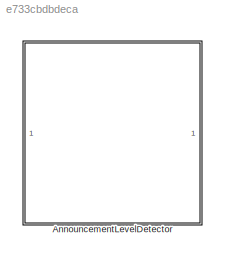
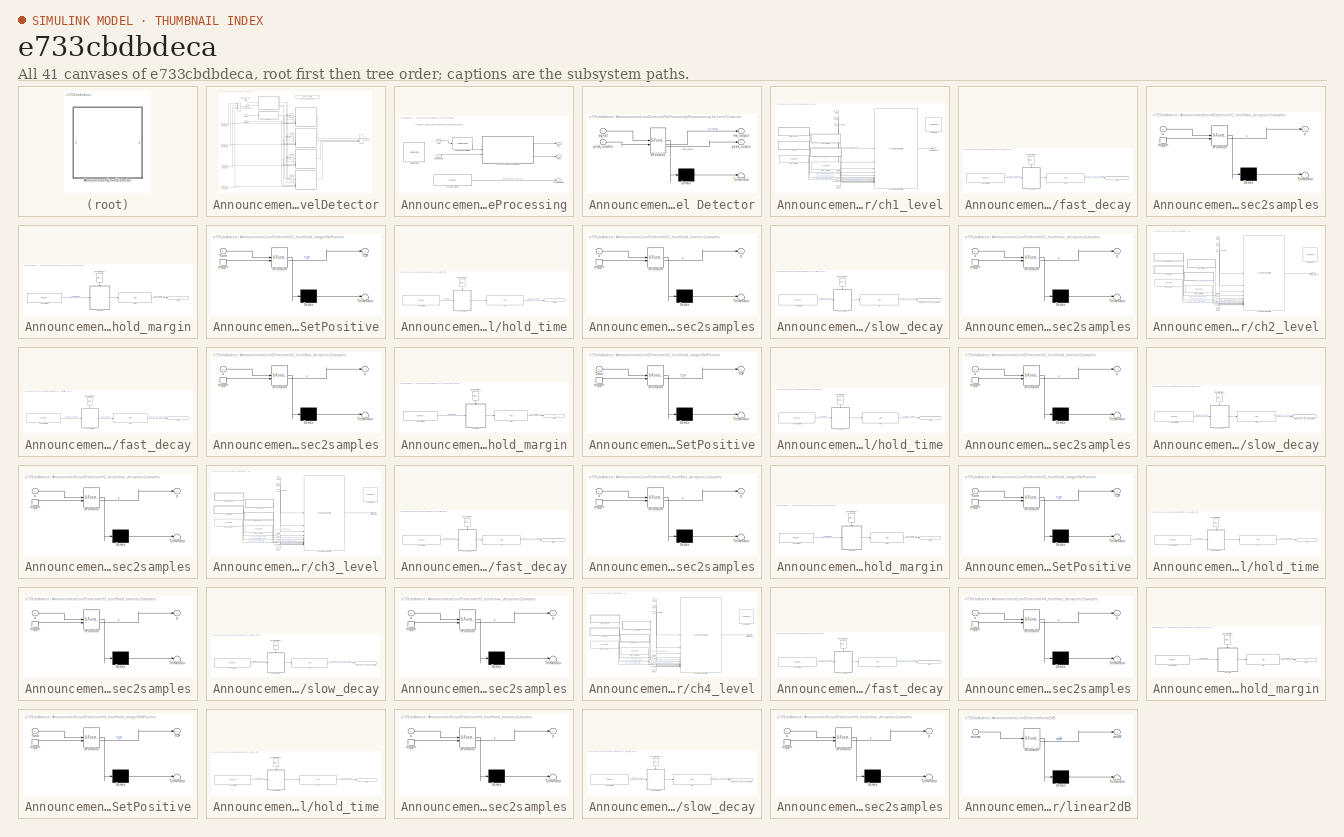
[diagram: thumbnail index - all 41 canvases of the model, root first then tree order]
MODEL slx_e733cbdbdeca
KIND library
CONFIG AbsTol = auto
CONFIG EnableMultiTasking = off
CONFIG FixedStep = auto
CONFIG InitFcn = AnnouncementLevelDetector_init;
CONFIG MaxStep = auto
CONFIG MinStep = auto
CONFIG PreLoadFcn = if (~exist('sys_defs','var'))\n sys_defs = default_sys_defs();\nend\nNUM_MUSIC_IN=6;\n%EntertainmentLevelDetection_init(sys_defs); 
CONFIG RelTol = 1e-3
CONFIG SampleTimeConstraint = Unconstrained
CONFIG SolverName = VariableStepAuto
CONFIG StartTime = 0.0
CONFIG StopTime = 10.0
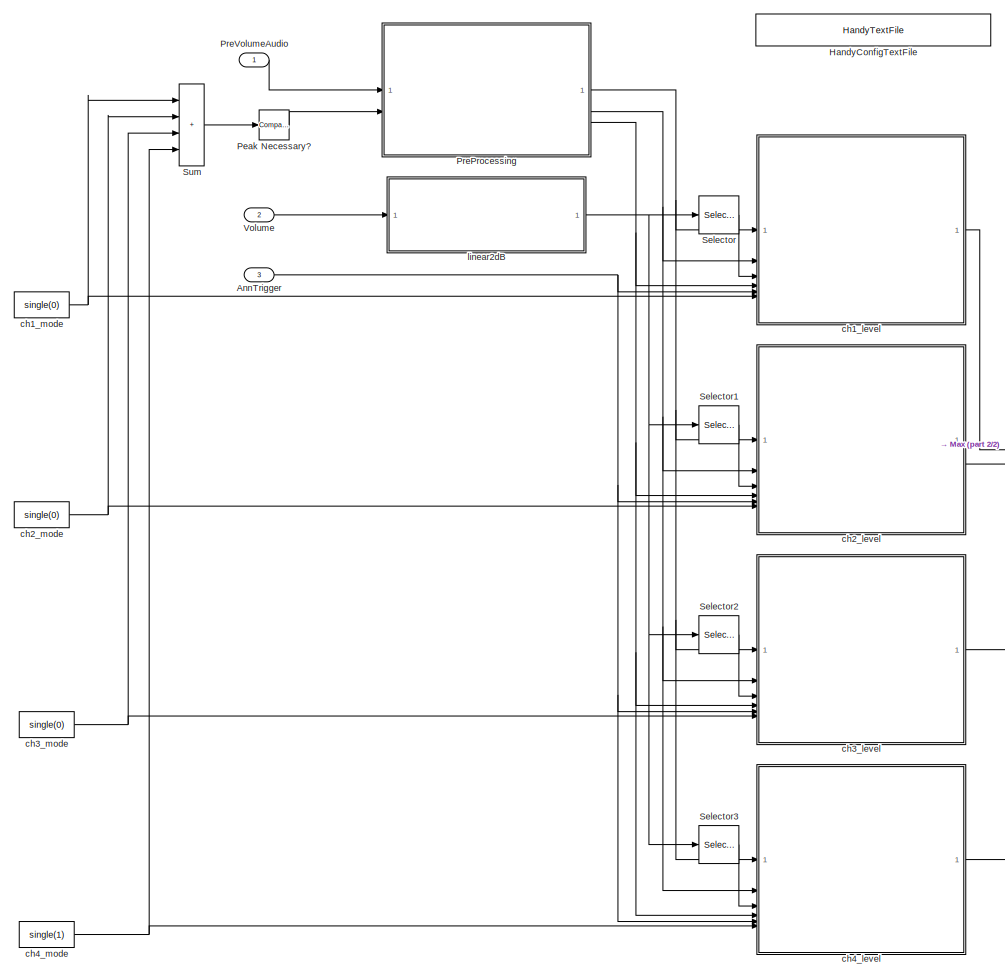
[diagram: AnnouncementLevelDetector - part 1/2, center side, full height]
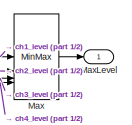
[diagram: AnnouncementLevelDetector - part 2/2, middle right region]
BLOCK [SubSystem] AnnouncementLevelDetector
BLOCK [Inport] AnnouncementLevelDetector/AnnTrigger
  Port = 3
BLOCK [Reference] AnnouncementLevelDetector/HandyConfigTextFile  REF=HandyTextFile/HandyTextFile
  SourceBlock = HandyTextFile/HandyTextFile
  SourceProductName = Bose Talaria
  SourceType = Talaria Handy Text File
BLOCK [MinMax] AnnouncementLevelDetector/Max
  Function = max
  Inputs = 4
BLOCK [Outport] AnnouncementLevelDetector/MaxLevel
BLOCK [Reference] AnnouncementLevelDetector/Peak Necessary?  REF=simulink/Logic and Bit
Operations/Compare
To Zero
  SourceBlock = simulink/Logic and Bit\nOperations/Compare\nTo Zero
  SourceType = Compare To Zero
BLOCK [SubSystem] AnnouncementLevelDetector/PreProcessing
BLOCK [Inport] AnnouncementLevelDetector/PreProcessing/Audio
BLOCK [Reference] AnnouncementLevelDetector/PreProcessing/FeaturePath  REF=FeaturePath/FeaturePath
  SourceBlock = FeaturePath/FeaturePath
  SourceProductName = Bose Talaria
  SourceType = Talaria Feature Path
BLOCK [Outport] AnnouncementLevelDetector/PreProcessing/Peak
  Port = 2
  VectorParamsAs1DForOutWhenUnconnected = off
BLOCK [Inport] AnnouncementLevelDetector/PreProcessing/PeakEnable
  Port = 2
BLOCK [Reference] AnnouncementLevelDetector/PreProcessing/PreEmphasisShelfFilter  REF=PoolIir/PoolIirTunable
  SourceBlock = PoolIir/PoolIirTunable
  SourceType = Bose Pool IIR Tunable
BLOCK [SubSystem] AnnouncementLevelDetector/PreProcessing/Preprocessing for Level Detector
  ErrorFcn = Stateflow.Translate.translate
  PermitHierarchicalResolution = ExplicitOnly
  SFBlockType = MATLAB Function
  TreatAsAtomicUnit = on
BLOCK [Demux] AnnouncementLevelDetector/PreProcessing/Preprocessing for Level Detector/ Demux 
  Outputs = 1
BLOCK [S-Function] AnnouncementLevelDetector/PreProcessing/Preprocessing for Level Detector/ SFunction 
  EnableBusSupport = off
  FunctionName = sf_sfun
  PortCounts = [2 3]
  SFcnIsStateOwnerBlock = off
  SFunctionDeploymentMode = off
  Tag = Stateflow S-Function 15
BLOCK [Terminator] AnnouncementLevelDetector/PreProcessing/Preprocessing for Level Detector/ Terminator 
BLOCK [Inport] AnnouncementLevelDetector/PreProcessing/Preprocessing for Level Detector/peak_enable
  Port = 2
BLOCK [Outport] AnnouncementLevelDetector/PreProcessing/Preprocessing for Level Detector/peak_output
  Port = 2
  VectorParamsAs1DForOutWhenUnconnected = off
BLOCK [Outport] AnnouncementLevelDetector/PreProcessing/Preprocessing for Level Detector/rms_output
  VectorParamsAs1DForOutWhenUnconnected = off
BLOCK [Inport] AnnouncementLevelDetector/PreProcessing/Preprocessing for Level Detector/signal
BLOCK [Outport] AnnouncementLevelDetector/PreProcessing/RMS
  VectorParamsAs1DForOutWhenUnconnected = off
BLOCK [Outport] AnnouncementLevelDetector/PreProcessing/SysMaxdBSPL
  Port = 3
  VectorParamsAs1DForOutWhenUnconnected = off
BLOCK [Reference] AnnouncementLevelDetector/PreProcessing/sys_max_dbspl  REF=TuneVar/TuneTOP
  SourceBlock = TuneVar/TuneTOP
  SourceProductName = Bose Talaria
  SourceType = Talaria Trivial Tune TOP
BLOCK [Inport] AnnouncementLevelDetector/PreVolumeAudio
  PortDimensions = [Config.FrameSize Config.AnnChannelCount]
BLOCK [Selector] AnnouncementLevelDetector/Selector
  IndexOptions = Select all,Index vector (dialog)
  Indices = [1 3],1
  InputPortWidth = 3
  NumberOfDimensions = 2
  OutputSizes = 1,1
BLOCK [Selector] AnnouncementLevelDetector/Selector1
  IndexOptions = Select all,Index vector (dialog)
  Indices = [1 3],min(2, Config.AnnChannelCount)
  InputPortWidth = 3
  NumberOfDimensions = 2
  OutputSizes = 1,1
BLOCK [Selector] AnnouncementLevelDetector/Selector2
  IndexOptions = Select all,Index vector (dialog)
  Indices = [1 3],min(3, Config.AnnChannelCount)
  InputPortWidth = 3
  NumberOfDimensions = 2
  OutputSizes = 1,1
BLOCK [Selector] AnnouncementLevelDetector/Selector3
  IndexOptions = Select all,Index vector (dialog)
  Indices = [1 3],min(4, Config.AnnChannelCount)
  InputPortWidth = 3
  NumberOfDimensions = 2
  OutputSizes = 1,1
BLOCK [Sum] AnnouncementLevelDetector/Sum
  IconShape = rectangular
  Inputs = ++++
BLOCK [Inport] AnnouncementLevelDetector/Volume
  Port = 2
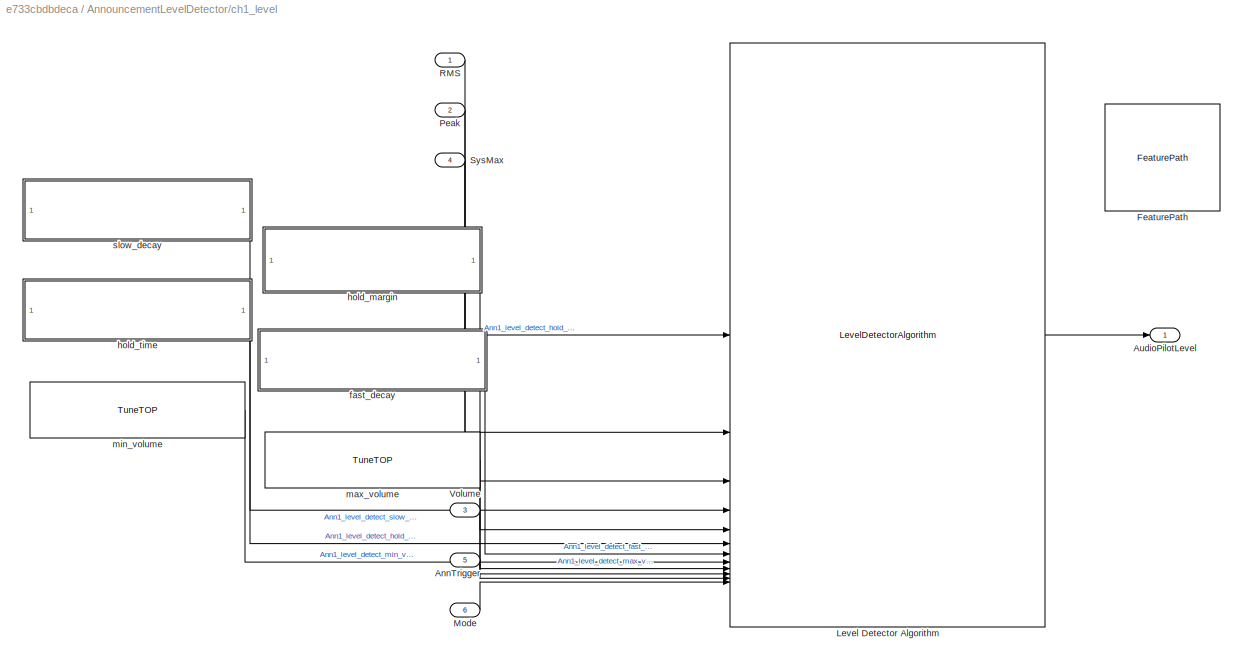
BLOCK [SubSystem] AnnouncementLevelDetector/ch1_level
BLOCK [Inport] AnnouncementLevelDetector/ch1_level/AnnTrigger
  Port = 5
BLOCK [Outport] AnnouncementLevelDetector/ch1_level/AudioPilotLevel
  VectorParamsAs1DForOutWhenUnconnected = off
BLOCK [Reference] AnnouncementLevelDetector/ch1_level/FeaturePath  REF=FeaturePath/FeaturePath
  SourceBlock = FeaturePath/FeaturePath
  SourceProductName = Bose Talaria
  SourceType = Talaria Feature Path
BLOCK [Reference] AnnouncementLevelDetector/ch1_level/Level Detector Algorithm  REF=LevelDetectorLib/LevelDetectorAlgorithm
  SourceBlock = LevelDetectorLib/LevelDetectorAlgorithm
  SourceType = Bose Level Detector Algorithm
BLOCK [Inport] AnnouncementLevelDetector/ch1_level/Mode
  Port = 6
BLOCK [Inport] AnnouncementLevelDetector/ch1_level/Peak
  Port = 2
BLOCK [Inport] AnnouncementLevelDetector/ch1_level/RMS
BLOCK [Inport] AnnouncementLevelDetector/ch1_level/SysMax
  Port = 4
BLOCK [Inport] AnnouncementLevelDetector/ch1_level/Volume
  Port = 3
BLOCK [SubSystem] AnnouncementLevelDetector/ch1_level/fast_decay
BLOCK [Outport] AnnouncementLevelDetector/ch1_level/fast_decay/Out1
  IconDisplay = Signal name
  VectorParamsAs1DForOutWhenUnconnected = off
BLOCK [Reference] AnnouncementLevelDetector/ch1_level/fast_decay/TOP  REF=TOP/TOP
  SourceBlock = TOP/TOP
  SourceProductName = Bose Talaria
  SourceType = Talaria Target Overlay Parameter
BLOCK [Reference] AnnouncementLevelDetector/ch1_level/fast_decay/TranslateTrigger  REF=TuneVar/TranslateTrigger
  NameLocation = left
  SourceBlock = TuneVar/TranslateTrigger
  SourceProductName = Bose Talaria
  SourceType = Talaria Translate Trigger
BLOCK [Reference] AnnouncementLevelDetector/ch1_level/fast_decay/Tune Variable  REF=TuneVar/TuneVar
  SourceBlock = TuneVar/TuneVar
  SourceProductName = Bose Talaria
  SourceType = Talaria Tune Variable
BLOCK [SubSystem] AnnouncementLevelDetector/ch1_level/fast_decay/sec2samples
  ErrorFcn = Stateflow.Translate.translate
  PermitHierarchicalResolution = ExplicitOnly
  SFBlockType = MATLAB Function
  TreatAsAtomicUnit = on
BLOCK [Demux] AnnouncementLevelDetector/ch1_level/fast_decay/sec2samples/ Demux 
  Outputs = 1
BLOCK [S-Function] AnnouncementLevelDetector/ch1_level/fast_decay/sec2samples/ SFunction 
  EnableBusSupport = off
  FunctionName = sf_sfun
  Parameters = FrameRate
  PortCounts = [2 2]
  SFcnIsStateOwnerBlock = off
  SFunctionDeploymentMode = off
  Tag = Stateflow S-Function 1
BLOCK [Terminator] AnnouncementLevelDetector/ch1_level/fast_decay/sec2samples/ Terminator 
BLOCK [TriggerPort] AnnouncementLevelDetector/ch1_level/fast_decay/sec2samples/trigger
  ShowOutputPort = on
  StatesWhenEnabling = held
  TriggerType = function-call
  VariantControl = Variant
BLOCK [Inport] AnnouncementLevelDetector/ch1_level/fast_decay/sec2samples/u
BLOCK [Outport] AnnouncementLevelDetector/ch1_level/fast_decay/sec2samples/y
  VectorParamsAs1DForOutWhenUnconnected = off
BLOCK [SubSystem] AnnouncementLevelDetector/ch1_level/hold_margin
BLOCK [Outport] AnnouncementLevelDetector/ch1_level/hold_margin/Out1
  IconDisplay = Signal name
  VectorParamsAs1DForOutWhenUnconnected = off
BLOCK [SubSystem] AnnouncementLevelDetector/ch1_level/hold_margin/SetPositive
  ErrorFcn = Stateflow.Translate.translate
  PermitHierarchicalResolution = ExplicitOnly
  SFBlockType = MATLAB Function
  TreatAsAtomicUnit = on
BLOCK [Demux] AnnouncementLevelDetector/ch1_level/hold_margin/SetPositive/ Demux 
  Outputs = 1
BLOCK [S-Function] AnnouncementLevelDetector/ch1_level/hold_margin/SetPositive/ SFunction 
  EnableBusSupport = off
  FunctionName = sf_sfun
  PortCounts = [2 2]
  SFcnIsStateOwnerBlock = off
  SFunctionDeploymentMode = off
  Tag = Stateflow S-Function 11
BLOCK [Terminator] AnnouncementLevelDetector/ch1_level/hold_margin/SetPositive/ Terminator 
BLOCK [Outport] AnnouncementLevelDetector/ch1_level/hold_margin/SetPositive/TOP
  VectorParamsAs1DForOutWhenUnconnected = off
BLOCK [Inport] AnnouncementLevelDetector/ch1_level/hold_margin/SetPositive/Tune
BLOCK [TriggerPort] AnnouncementLevelDetector/ch1_level/hold_margin/SetPositive/trigger
  ShowOutputPort = on
  StatesWhenEnabling = held
  TriggerType = function-call
  VariantControl = Variant
BLOCK [Reference] AnnouncementLevelDetector/ch1_level/hold_margin/TOP  REF=TOP/TOP
  SourceBlock = TOP/TOP
  SourceProductName = Bose Talaria
  SourceType = Talaria Target Overlay Parameter
BLOCK [Reference] AnnouncementLevelDetector/ch1_level/hold_margin/TranslateTrigger  REF=TuneVar/TranslateTrigger
  NameLocation = left
  SourceBlock = TuneVar/TranslateTrigger
  SourceProductName = Bose Talaria
  SourceType = Talaria Translate Trigger
BLOCK [Reference] AnnouncementLevelDetector/ch1_level/hold_margin/Tune Variable  REF=TuneVar/TuneVar
  SourceBlock = TuneVar/TuneVar
  SourceProductName = Bose Talaria
  SourceType = Talaria Tune Variable
BLOCK [SubSystem] AnnouncementLevelDetector/ch1_level/hold_time
BLOCK [Outport] AnnouncementLevelDetector/ch1_level/hold_time/Out1
  IconDisplay = Signal name
  VectorParamsAs1DForOutWhenUnconnected = off
BLOCK [Reference] AnnouncementLevelDetector/ch1_level/hold_time/TOP  REF=TOP/TOP
  SourceBlock = TOP/TOP
  SourceProductName = Bose Talaria
  SourceType = Talaria Target Overlay Parameter
BLOCK [Reference] AnnouncementLevelDetector/ch1_level/hold_time/TranslateTrigger  REF=TuneVar/TranslateTrigger
  NameLocation = left
  SourceBlock = TuneVar/TranslateTrigger
  SourceProductName = Bose Talaria
  SourceType = Talaria Translate Trigger
BLOCK [Reference] AnnouncementLevelDetector/ch1_level/hold_time/Tune Variable  REF=TuneVar/TuneVar
  SourceBlock = TuneVar/TuneVar
  SourceProductName = Bose Talaria
  SourceType = Talaria Tune Variable
BLOCK [SubSystem] AnnouncementLevelDetector/ch1_level/hold_time/sec2samples
  ErrorFcn = Stateflow.Translate.translate
  PermitHierarchicalResolution = ExplicitOnly
  SFBlockType = MATLAB Function
  TreatAsAtomicUnit = on
BLOCK [Demux] AnnouncementLevelDetector/ch1_level/hold_time/sec2samples/ Demux 
  Outputs = 1
BLOCK [S-Function] AnnouncementLevelDetector/ch1_level/hold_time/sec2samples/ SFunction 
  EnableBusSupport = off
  FunctionName = sf_sfun
  Parameters = FrameRate
  PortCounts = [2 2]
  SFcnIsStateOwnerBlock = off
  SFunctionDeploymentMode = off
  Tag = Stateflow S-Function 2
BLOCK [Terminator] AnnouncementLevelDetector/ch1_level/hold_time/sec2samples/ Terminator 
BLOCK [TriggerPort] AnnouncementLevelDetector/ch1_level/hold_time/sec2samples/trigger
  ShowOutputPort = on
  StatesWhenEnabling = held
  TriggerType = function-call
  VariantControl = Variant
BLOCK [Inport] AnnouncementLevelDetector/ch1_level/hold_time/sec2samples/u
BLOCK [Outport] AnnouncementLevelDetector/ch1_level/hold_time/sec2samples/y
  VectorParamsAs1DForOutWhenUnconnected = off
BLOCK [Reference] AnnouncementLevelDetector/ch1_level/max_volume  REF=TuneVar/TuneTOP
  SourceBlock = TuneVar/TuneTOP
  SourceProductName = Bose Talaria
  SourceType = Talaria Trivial Tune TOP
BLOCK [Reference] AnnouncementLevelDetector/ch1_level/min_volume  REF=TuneVar/TuneTOP
  SourceBlock = TuneVar/TuneTOP
  SourceProductName = Bose Talaria
  SourceType = Talaria Trivial Tune TOP
BLOCK [SubSystem] AnnouncementLevelDetector/ch1_level/slow_decay
BLOCK [Reference] AnnouncementLevelDetector/ch1_level/slow_decay/TOP  REF=TOP/TOP
  SourceBlock = TOP/TOP
  SourceProductName = Bose Talaria
  SourceType = Talaria Target Overlay Parameter
BLOCK [Reference] AnnouncementLevelDetector/ch1_level/slow_decay/TranslateTrigger  REF=TuneVar/TranslateTrigger
  NameLocation = left
  SourceBlock = TuneVar/TranslateTrigger
  SourceProductName = Bose Talaria
  SourceType = Talaria Translate Trigger
BLOCK [Reference] AnnouncementLevelDetector/ch1_level/slow_decay/Tune Variable  REF=TuneVar/TuneVar
  SourceBlock = TuneVar/TuneVar
  SourceProductName = Bose Talaria
  SourceType = Talaria Tune Variable
BLOCK [SubSystem] AnnouncementLevelDetector/ch1_level/slow_decay/sec2samples
  ErrorFcn = Stateflow.Translate.translate
  PermitHierarchicalResolution = ExplicitOnly
  SFBlockType = MATLAB Function
  TreatAsAtomicUnit = on
BLOCK [Demux] AnnouncementLevelDetector/ch1_level/slow_decay/sec2samples/ Demux 
  Outputs = 1
BLOCK [S-Function] AnnouncementLevelDetector/ch1_level/slow_decay/sec2samples/ SFunction 
  EnableBusSupport = off
  FunctionName = sf_sfun
  Parameters = FrameRate
  PortCounts = [2 2]
  SFcnIsStateOwnerBlock = off
  SFunctionDeploymentMode = off
  Tag = Stateflow S-Function 8
BLOCK [Terminator] AnnouncementLevelDetector/ch1_level/slow_decay/sec2samples/ Terminator 
BLOCK [TriggerPort] AnnouncementLevelDetector/ch1_level/slow_decay/sec2samples/trigger
  ShowOutputPort = on
  StatesWhenEnabling = held
  TriggerType = function-call
  VariantControl = Variant
BLOCK [Inport] AnnouncementLevelDetector/ch1_level/slow_decay/sec2samples/u
BLOCK [Outport] AnnouncementLevelDetector/ch1_level/slow_decay/sec2samples/y
  VectorParamsAs1DForOutWhenUnconnected = off
BLOCK [Outport] AnnouncementLevelDetector/ch1_level/slow_decay/slow_decay_db_per_sample
  IconDisplay = Signal name
  VectorParamsAs1DForOutWhenUnconnected = off
BLOCK [Constant] AnnouncementLevelDetector/ch1_mode
  Value = single(0)
BLOCK [SubSystem] AnnouncementLevelDetector/ch2_level
BLOCK [Inport] AnnouncementLevelDetector/ch2_level/AnnTrigger
  Port = 5
BLOCK [Outport] AnnouncementLevelDetector/ch2_level/DyneqLevel
  VectorParamsAs1DForOutWhenUnconnected = off
BLOCK [Reference] AnnouncementLevelDetector/ch2_level/FeaturePath  REF=FeaturePath/FeaturePath
  SourceBlock = FeaturePath/FeaturePath
  SourceProductName = Bose Talaria
  SourceType = Talaria Feature Path
BLOCK [Reference] AnnouncementLevelDetector/ch2_level/Level Detector Algorithm  REF=LevelDetectorLib/LevelDetectorAlgorithm
  SourceBlock = LevelDetectorLib/LevelDetectorAlgorithm
  SourceType = Bose Level Detector Algorithm
BLOCK [Inport] AnnouncementLevelDetector/ch2_level/Mode
  Port = 6
BLOCK [Inport] AnnouncementLevelDetector/ch2_level/Peak
  Port = 2
BLOCK [Inport] AnnouncementLevelDetector/ch2_level/RMS
BLOCK [Inport] AnnouncementLevelDetector/ch2_level/SysMax
  Port = 4
BLOCK [Inport] AnnouncementLevelDetector/ch2_level/Volume
  Port = 3
BLOCK [SubSystem] AnnouncementLevelDetector/ch2_level/fast_decay
BLOCK [Outport] AnnouncementLevelDetector/ch2_level/fast_decay/Out1
  IconDisplay = Signal name
  VectorParamsAs1DForOutWhenUnconnected = off
BLOCK [Reference] AnnouncementLevelDetector/ch2_level/fast_decay/TOP  REF=TOP/TOP
  SourceBlock = TOP/TOP
  SourceProductName = Bose Talaria
  SourceType = Talaria Target Overlay Parameter
BLOCK [Reference] AnnouncementLevelDetector/ch2_level/fast_decay/TranslateTrigger  REF=TuneVar/TranslateTrigger
  NameLocation = left
  SourceBlock = TuneVar/TranslateTrigger
  SourceProductName = Bose Talaria
  SourceType = Talaria Translate Trigger
BLOCK [Reference] AnnouncementLevelDetector/ch2_level/fast_decay/Tune Variable  REF=TuneVar/TuneVar
  SourceBlock = TuneVar/TuneVar
  SourceProductName = Bose Talaria
  SourceType = Talaria Tune Variable
BLOCK [SubSystem] AnnouncementLevelDetector/ch2_level/fast_decay/sec2samples
  ErrorFcn = Stateflow.Translate.translate
  PermitHierarchicalResolution = ExplicitOnly
  SFBlockType = MATLAB Function
  TreatAsAtomicUnit = on
BLOCK [Demux] AnnouncementLevelDetector/ch2_level/fast_decay/sec2samples/ Demux 
  Outputs = 1
BLOCK [S-Function] AnnouncementLevelDetector/ch2_level/fast_decay/sec2samples/ SFunction 
  EnableBusSupport = off
  FunctionName = sf_sfun
  Parameters = FrameRate
  PortCounts = [2 2]
  SFcnIsStateOwnerBlock = off
  SFunctionDeploymentMode = off
  Tag = Stateflow S-Function 5
BLOCK [Terminator] AnnouncementLevelDetector/ch2_level/fast_decay/sec2samples/ Terminator 
BLOCK [TriggerPort] AnnouncementLevelDetector/ch2_level/fast_decay/sec2samples/trigger
  ShowOutputPort = on
  StatesWhenEnabling = held
  TriggerType = function-call
  VariantControl = Variant
BLOCK [Inport] AnnouncementLevelDetector/ch2_level/fast_decay/sec2samples/u
BLOCK [Outport] AnnouncementLevelDetector/ch2_level/fast_decay/sec2samples/y
  VectorParamsAs1DForOutWhenUnconnected = off
BLOCK [SubSystem] AnnouncementLevelDetector/ch2_level/hold_margin
BLOCK [Outport] AnnouncementLevelDetector/ch2_level/hold_margin/Out1
  IconDisplay = Signal name
  VectorParamsAs1DForOutWhenUnconnected = off
BLOCK [SubSystem] AnnouncementLevelDetector/ch2_level/hold_margin/SetPositive
  ErrorFcn = Stateflow.Translate.translate
  PermitHierarchicalResolution = ExplicitOnly
  SFBlockType = MATLAB Function
  TreatAsAtomicUnit = on
BLOCK [Demux] AnnouncementLevelDetector/ch2_level/hold_margin/SetPositive/ Demux 
  Outputs = 1
BLOCK [S-Function] AnnouncementLevelDetector/ch2_level/hold_margin/SetPositive/ SFunction 
  EnableBusSupport = off
  FunctionName = sf_sfun
  PortCounts = [2 2]
  SFcnIsStateOwnerBlock = off
  SFunctionDeploymentMode = off
  Tag = Stateflow S-Function 16
BLOCK [Terminator] AnnouncementLevelDetector/ch2_level/hold_margin/SetPositive/ Terminator 
BLOCK [Outport] AnnouncementLevelDetector/ch2_level/hold_margin/SetPositive/TOP
  VectorParamsAs1DForOutWhenUnconnected = off
BLOCK [Inport] AnnouncementLevelDetector/ch2_level/hold_margin/SetPositive/Tune
BLOCK [TriggerPort] AnnouncementLevelDetector/ch2_level/hold_margin/SetPositive/trigger
  ShowOutputPort = on
  StatesWhenEnabling = held
  TriggerType = function-call
  VariantControl = Variant
BLOCK [Reference] AnnouncementLevelDetector/ch2_level/hold_margin/TOP  REF=TOP/TOP
  SourceBlock = TOP/TOP
  SourceProductName = Bose Talaria
  SourceType = Talaria Target Overlay Parameter
BLOCK [Reference] AnnouncementLevelDetector/ch2_level/hold_margin/TranslateTrigger  REF=TuneVar/TranslateTrigger
  NameLocation = left
  SourceBlock = TuneVar/TranslateTrigger
  SourceProductName = Bose Talaria
  SourceType = Talaria Translate Trigger
BLOCK [Reference] AnnouncementLevelDetector/ch2_level/hold_margin/Tune Variable  REF=TuneVar/TuneVar
  SourceBlock = TuneVar/TuneVar
  SourceProductName = Bose Talaria
  SourceType = Talaria Tune Variable
BLOCK [SubSystem] AnnouncementLevelDetector/ch2_level/hold_time
BLOCK [Outport] AnnouncementLevelDetector/ch2_level/hold_time/Out1
  IconDisplay = Signal name
  VectorParamsAs1DForOutWhenUnconnected = off
BLOCK [Reference] AnnouncementLevelDetector/ch2_level/hold_time/TOP  REF=TOP/TOP
  SourceBlock = TOP/TOP
  SourceProductName = Bose Talaria
  SourceType = Talaria Target Overlay Parameter
BLOCK [Reference] AnnouncementLevelDetector/ch2_level/hold_time/TranslateTrigger  REF=TuneVar/TranslateTrigger
  NameLocation = left
  SourceBlock = TuneVar/TranslateTrigger
  SourceProductName = Bose Talaria
  SourceType = Talaria Translate Trigger
BLOCK [Reference] AnnouncementLevelDetector/ch2_level/hold_time/Tune Variable  REF=TuneVar/TuneVar
  SourceBlock = TuneVar/TuneVar
  SourceProductName = Bose Talaria
  SourceType = Talaria Tune Variable
BLOCK [SubSystem] AnnouncementLevelDetector/ch2_level/hold_time/sec2samples
  ErrorFcn = Stateflow.Translate.translate
  PermitHierarchicalResolution = ExplicitOnly
  SFBlockType = MATLAB Function
  TreatAsAtomicUnit = on
BLOCK [Demux] AnnouncementLevelDetector/ch2_level/hold_time/sec2samples/ Demux 
  Outputs = 1
BLOCK [S-Function] AnnouncementLevelDetector/ch2_level/hold_time/sec2samples/ SFunction 
  EnableBusSupport = off
  FunctionName = sf_sfun
  Parameters = FrameRate
  PortCounts = [2 2]
  SFcnIsStateOwnerBlock = off
  SFunctionDeploymentMode = off
  Tag = Stateflow S-Function 4
BLOCK [Terminator] AnnouncementLevelDetector/ch2_level/hold_time/sec2samples/ Terminator 
BLOCK [TriggerPort] AnnouncementLevelDetector/ch2_level/hold_time/sec2samples/trigger
  ShowOutputPort = on
  StatesWhenEnabling = held
  TriggerType = function-call
  VariantControl = Variant
BLOCK [Inport] AnnouncementLevelDetector/ch2_level/hold_time/sec2samples/u
BLOCK [Outport] AnnouncementLevelDetector/ch2_level/hold_time/sec2samples/y
  VectorParamsAs1DForOutWhenUnconnected = off
BLOCK [Reference] AnnouncementLevelDetector/ch2_level/max_volume  REF=TuneVar/TuneTOP
  SourceBlock = TuneVar/TuneTOP
  SourceProductName = Bose Talaria
  SourceType = Talaria Trivial Tune TOP
BLOCK [Reference] AnnouncementLevelDetector/ch2_level/min_volume  REF=TuneVar/TuneTOP
  SourceBlock = TuneVar/TuneTOP
  SourceProductName = Bose Talaria
  SourceType = Talaria Trivial Tune TOP
BLOCK [SubSystem] AnnouncementLevelDetector/ch2_level/slow_decay
BLOCK [Reference] AnnouncementLevelDetector/ch2_level/slow_decay/TOP  REF=TOP/TOP
  SourceBlock = TOP/TOP
  SourceProductName = Bose Talaria
  SourceType = Talaria Target Overlay Parameter
BLOCK [Reference] AnnouncementLevelDetector/ch2_level/slow_decay/TranslateTrigger  REF=TuneVar/TranslateTrigger
  NameLocation = left
  SourceBlock = TuneVar/TranslateTrigger
  SourceProductName = Bose Talaria
  SourceType = Talaria Translate Trigger
BLOCK [Reference] AnnouncementLevelDetector/ch2_level/slow_decay/Tune Variable  REF=TuneVar/TuneVar
  SourceBlock = TuneVar/TuneVar
  SourceProductName = Bose Talaria
  SourceType = Talaria Tune Variable
BLOCK [SubSystem] AnnouncementLevelDetector/ch2_level/slow_decay/sec2samples
  ErrorFcn = Stateflow.Translate.translate
  PermitHierarchicalResolution = ExplicitOnly
  SFBlockType = MATLAB Function
  TreatAsAtomicUnit = on
BLOCK [Demux] AnnouncementLevelDetector/ch2_level/slow_decay/sec2samples/ Demux 
  Outputs = 1
BLOCK [S-Function] AnnouncementLevelDetector/ch2_level/slow_decay/sec2samples/ SFunction 
  EnableBusSupport = off
  FunctionName = sf_sfun
  Parameters = FrameRate
  PortCounts = [2 2]
  SFcnIsStateOwnerBlock = off
  SFunctionDeploymentMode = off
  Tag = Stateflow S-Function 3
BLOCK [Terminator] AnnouncementLevelDetector/ch2_level/slow_decay/sec2samples/ Terminator 
BLOCK [TriggerPort] AnnouncementLevelDetector/ch2_level/slow_decay/sec2samples/trigger
  ShowOutputPort = on
  StatesWhenEnabling = held
  TriggerType = function-call
  VariantControl = Variant
BLOCK [Inport] AnnouncementLevelDetector/ch2_level/slow_decay/sec2samples/u
BLOCK [Outport] AnnouncementLevelDetector/ch2_level/slow_decay/sec2samples/y
  VectorParamsAs1DForOutWhenUnconnected = off
BLOCK [Outport] AnnouncementLevelDetector/ch2_level/slow_decay/slow_decay_db_per_sample
  IconDisplay = Signal name
  VectorParamsAs1DForOutWhenUnconnected = off
BLOCK [Constant] AnnouncementLevelDetector/ch2_mode
  Value = single(0)
BLOCK [SubSystem] AnnouncementLevelDetector/ch3_level
BLOCK [Inport] AnnouncementLevelDetector/ch3_level/AnnTrigger
  Port = 5
BLOCK [Outport] AnnouncementLevelDetector/ch3_level/FanLevel
  VectorParamsAs1DForOutWhenUnconnected = off
BLOCK [Reference] AnnouncementLevelDetector/ch3_level/FeaturePath  REF=FeaturePath/FeaturePath
  SourceBlock = FeaturePath/FeaturePath
  SourceProductName = Bose Talaria
  SourceType = Talaria Feature Path
BLOCK [Reference] AnnouncementLevelDetector/ch3_level/Level Detector Algorithm  REF=LevelDetectorLib/LevelDetectorAlgorithm
  SourceBlock = LevelDetectorLib/LevelDetectorAlgorithm
  SourceType = Bose Level Detector Algorithm
BLOCK [Inport] AnnouncementLevelDetector/ch3_level/Mode
  Port = 6
BLOCK [Inport] AnnouncementLevelDetector/ch3_level/Peak
  Port = 2
BLOCK [Inport] AnnouncementLevelDetector/ch3_level/RMS
BLOCK [Inport] AnnouncementLevelDetector/ch3_level/SysMax
  Port = 4
BLOCK [Inport] AnnouncementLevelDetector/ch3_level/Volume
  Port = 3
BLOCK [SubSystem] AnnouncementLevelDetector/ch3_level/fast_decay
BLOCK [Outport] AnnouncementLevelDetector/ch3_level/fast_decay/Out1
  IconDisplay = Signal name
  VectorParamsAs1DForOutWhenUnconnected = off
BLOCK [Reference] AnnouncementLevelDetector/ch3_level/fast_decay/TOP  REF=TOP/TOP
  SourceBlock = TOP/TOP
  SourceProductName = Bose Talaria
  SourceType = Talaria Target Overlay Parameter
BLOCK [Reference] AnnouncementLevelDetector/ch3_level/fast_decay/TranslateTrigger  REF=TuneVar/TranslateTrigger
  NameLocation = left
  SourceBlock = TuneVar/TranslateTrigger
  SourceProductName = Bose Talaria
  SourceType = Talaria Translate Trigger
BLOCK [Reference] AnnouncementLevelDetector/ch3_level/fast_decay/Tune Variable  REF=TuneVar/TuneVar
  SourceBlock = TuneVar/TuneVar
  SourceProductName = Bose Talaria
  SourceType = Talaria Tune Variable
BLOCK [SubSystem] AnnouncementLevelDetector/ch3_level/fast_decay/sec2samples
  ErrorFcn = Stateflow.Translate.translate
  PermitHierarchicalResolution = ExplicitOnly
  SFBlockType = MATLAB Function
  TreatAsAtomicUnit = on
BLOCK [Demux] AnnouncementLevelDetector/ch3_level/fast_decay/sec2samples/ Demux 
  Outputs = 1
BLOCK [S-Function] AnnouncementLevelDetector/ch3_level/fast_decay/sec2samples/ SFunction 
  EnableBusSupport = off
  FunctionName = sf_sfun
  Parameters = FrameRate
  PortCounts = [2 2]
  SFcnIsStateOwnerBlock = off
  SFunctionDeploymentMode = off
  Tag = Stateflow S-Function 13
BLOCK [Terminator] AnnouncementLevelDetector/ch3_level/fast_decay/sec2samples/ Terminator 
BLOCK [TriggerPort] AnnouncementLevelDetector/ch3_level/fast_decay/sec2samples/trigger
  ShowOutputPort = on
  StatesWhenEnabling = held
  TriggerType = function-call
  VariantControl = Variant
BLOCK [Inport] AnnouncementLevelDetector/ch3_level/fast_decay/sec2samples/u
BLOCK [Outport] AnnouncementLevelDetector/ch3_level/fast_decay/sec2samples/y
  VectorParamsAs1DForOutWhenUnconnected = off
BLOCK [SubSystem] AnnouncementLevelDetector/ch3_level/hold_margin
BLOCK [Outport] AnnouncementLevelDetector/ch3_level/hold_margin/Out1
  IconDisplay = Signal name
  VectorParamsAs1DForOutWhenUnconnected = off
BLOCK [SubSystem] AnnouncementLevelDetector/ch3_level/hold_margin/SetPositive
  ErrorFcn = Stateflow.Translate.translate
  PermitHierarchicalResolution = ExplicitOnly
  SFBlockType = MATLAB Function
  TreatAsAtomicUnit = on
BLOCK [Demux] AnnouncementLevelDetector/ch3_level/hold_margin/SetPositive/ Demux 
  Outputs = 1
BLOCK [S-Function] AnnouncementLevelDetector/ch3_level/hold_margin/SetPositive/ SFunction 
  EnableBusSupport = off
  FunctionName = sf_sfun
  PortCounts = [2 2]
  SFcnIsStateOwnerBlock = off
  SFunctionDeploymentMode = off
  Tag = Stateflow S-Function 17
BLOCK [Terminator] AnnouncementLevelDetector/ch3_level/hold_margin/SetPositive/ Terminator 
BLOCK [Outport] AnnouncementLevelDetector/ch3_level/hold_margin/SetPositive/TOP
  VectorParamsAs1DForOutWhenUnconnected = off
BLOCK [Inport] AnnouncementLevelDetector/ch3_level/hold_margin/SetPositive/Tune
BLOCK [TriggerPort] AnnouncementLevelDetector/ch3_level/hold_margin/SetPositive/trigger
  ShowOutputPort = on
  StatesWhenEnabling = held
  TriggerType = function-call
  VariantControl = Variant
BLOCK [Reference] AnnouncementLevelDetector/ch3_level/hold_margin/TOP  REF=TOP/TOP
  SourceBlock = TOP/TOP
  SourceProductName = Bose Talaria
  SourceType = Talaria Target Overlay Parameter
BLOCK [Reference] AnnouncementLevelDetector/ch3_level/hold_margin/TranslateTrigger  REF=TuneVar/TranslateTrigger
  NameLocation = left
  SourceBlock = TuneVar/TranslateTrigger
  SourceProductName = Bose Talaria
  SourceType = Talaria Translate Trigger
BLOCK [Reference] AnnouncementLevelDetector/ch3_level/hold_margin/Tune Variable  REF=TuneVar/TuneVar
  SourceBlock = TuneVar/TuneVar
  SourceProductName = Bose Talaria
  SourceType = Talaria Tune Variable
BLOCK [SubSystem] AnnouncementLevelDetector/ch3_level/hold_time
BLOCK [Outport] AnnouncementLevelDetector/ch3_level/hold_time/Out1
  IconDisplay = Signal name
  VectorParamsAs1DForOutWhenUnconnected = off
BLOCK [Reference] AnnouncementLevelDetector/ch3_level/hold_time/TOP  REF=TOP/TOP
  SourceBlock = TOP/TOP
  SourceProductName = Bose Talaria
  SourceType = Talaria Target Overlay Parameter
BLOCK [Reference] AnnouncementLevelDetector/ch3_level/hold_time/TranslateTrigger  REF=TuneVar/TranslateTrigger
  NameLocation = left
  SourceBlock = TuneVar/TranslateTrigger
  SourceProductName = Bose Talaria
  SourceType = Talaria Translate Trigger
BLOCK [Reference] AnnouncementLevelDetector/ch3_level/hold_time/Tune Variable  REF=TuneVar/TuneVar
  SourceBlock = TuneVar/TuneVar
  SourceProductName = Bose Talaria
  SourceType = Talaria Tune Variable
BLOCK [SubSystem] AnnouncementLevelDetector/ch3_level/hold_time/sec2samples
  ErrorFcn = Stateflow.Translate.translate
  PermitHierarchicalResolution = ExplicitOnly
  SFBlockType = MATLAB Function
  TreatAsAtomicUnit = on
BLOCK [Demux] AnnouncementLevelDetector/ch3_level/hold_time/sec2samples/ Demux 
  Outputs = 1
BLOCK [S-Function] AnnouncementLevelDetector/ch3_level/hold_time/sec2samples/ SFunction 
  EnableBusSupport = off
  FunctionName = sf_sfun
  Parameters = FrameRate
  PortCounts = [2 2]
  SFcnIsStateOwnerBlock = off
  SFunctionDeploymentMode = off
  Tag = Stateflow S-Function 10
BLOCK [Terminator] AnnouncementLevelDetector/ch3_level/hold_time/sec2samples/ Terminator 
BLOCK [TriggerPort] AnnouncementLevelDetector/ch3_level/hold_time/sec2samples/trigger
  ShowOutputPort = on
  StatesWhenEnabling = held
  TriggerType = function-call
  VariantControl = Variant
BLOCK [Inport] AnnouncementLevelDetector/ch3_level/hold_time/sec2samples/u
BLOCK [Outport] AnnouncementLevelDetector/ch3_level/hold_time/sec2samples/y
  VectorParamsAs1DForOutWhenUnconnected = off
BLOCK [Reference] AnnouncementLevelDetector/ch3_level/max_volume1  REF=TuneVar/TuneTOP
  SourceBlock = TuneVar/TuneTOP
  SourceProductName = Bose Talaria
  SourceType = Talaria Trivial Tune TOP
BLOCK [Reference] AnnouncementLevelDetector/ch3_level/min_volume1  REF=TuneVar/TuneTOP
  SourceBlock = TuneVar/TuneTOP
  SourceProductName = Bose Talaria
  SourceType = Talaria Trivial Tune TOP
BLOCK [SubSystem] AnnouncementLevelDetector/ch3_level/slow_decay
BLOCK [Reference] AnnouncementLevelDetector/ch3_level/slow_decay/TOP  REF=TOP/TOP
  SourceBlock = TOP/TOP
  SourceProductName = Bose Talaria
  SourceType = Talaria Target Overlay Parameter
BLOCK [Reference] AnnouncementLevelDetector/ch3_level/slow_decay/TranslateTrigger  REF=TuneVar/TranslateTrigger
  NameLocation = left
  SourceBlock = TuneVar/TranslateTrigger
  SourceProductName = Bose Talaria
  SourceType = Talaria Translate Trigger
BLOCK [Reference] AnnouncementLevelDetector/ch3_level/slow_decay/Tune Variable  REF=TuneVar/TuneVar
  SourceBlock = TuneVar/TuneVar
  SourceProductName = Bose Talaria
  SourceType = Talaria Tune Variable
BLOCK [SubSystem] AnnouncementLevelDetector/ch3_level/slow_decay/sec2samples
  ErrorFcn = Stateflow.Translate.translate
  PermitHierarchicalResolution = ExplicitOnly
  SFBlockType = MATLAB Function
  TreatAsAtomicUnit = on
BLOCK [Demux] AnnouncementLevelDetector/ch3_level/slow_decay/sec2samples/ Demux 
  Outputs = 1
BLOCK [S-Function] AnnouncementLevelDetector/ch3_level/slow_decay/sec2samples/ SFunction 
  EnableBusSupport = off
  FunctionName = sf_sfun
  Parameters = FrameRate
  PortCounts = [2 2]
  SFcnIsStateOwnerBlock = off
  SFunctionDeploymentMode = off
  Tag = Stateflow S-Function 7
BLOCK [Terminator] AnnouncementLevelDetector/ch3_level/slow_decay/sec2samples/ Terminator 
BLOCK [TriggerPort] AnnouncementLevelDetector/ch3_level/slow_decay/sec2samples/trigger
  ShowOutputPort = on
  StatesWhenEnabling = held
  TriggerType = function-call
  VariantControl = Variant
BLOCK [Inport] AnnouncementLevelDetector/ch3_level/slow_decay/sec2samples/u
BLOCK [Outport] AnnouncementLevelDetector/ch3_level/slow_decay/sec2samples/y
  VectorParamsAs1DForOutWhenUnconnected = off
BLOCK [Outport] AnnouncementLevelDetector/ch3_level/slow_decay/slow_decay_db_per_sample
  IconDisplay = Signal name
  VectorParamsAs1DForOutWhenUnconnected = off
BLOCK [Constant] AnnouncementLevelDetector/ch3_mode
  Value = single(0)
BLOCK [SubSystem] AnnouncementLevelDetector/ch4_level
BLOCK [Inport] AnnouncementLevelDetector/ch4_level/AnnTrigger
  Port = 5
BLOCK [Outport] AnnouncementLevelDetector/ch4_level/BODLevel
  VectorParamsAs1DForOutWhenUnconnected = off
BLOCK [Reference] AnnouncementLevelDetector/ch4_level/FeaturePath  REF=FeaturePath/FeaturePath
  SourceBlock = FeaturePath/FeaturePath
  SourceProductName = Bose Talaria
  SourceType = Talaria Feature Path
BLOCK [Reference] AnnouncementLevelDetector/ch4_level/Level Detector Algorithm  REF=LevelDetectorLib/LevelDetectorAlgorithm
  SourceBlock = LevelDetectorLib/LevelDetectorAlgorithm
  SourceType = Bose Level Detector Algorithm
BLOCK [Inport] AnnouncementLevelDetector/ch4_level/Mode
  Port = 6
BLOCK [Inport] AnnouncementLevelDetector/ch4_level/Peak
  Port = 2
BLOCK [Inport] AnnouncementLevelDetector/ch4_level/RMS
BLOCK [Inport] AnnouncementLevelDetector/ch4_level/SysMax
  Port = 4
BLOCK [Inport] AnnouncementLevelDetector/ch4_level/Volume
  Port = 3
BLOCK [SubSystem] AnnouncementLevelDetector/ch4_level/fast_decay
BLOCK [Outport] AnnouncementLevelDetector/ch4_level/fast_decay/Out1
  IconDisplay = Signal name
  VectorParamsAs1DForOutWhenUnconnected = off
BLOCK [Reference] AnnouncementLevelDetector/ch4_level/fast_decay/TOP  REF=TOP/TOP
  SourceBlock = TOP/TOP
  SourceProductName = Bose Talaria
  SourceType = Talaria Target Overlay Parameter
BLOCK [Reference] AnnouncementLevelDetector/ch4_level/fast_decay/TranslateTrigger  REF=TuneVar/TranslateTrigger
  NameLocation = left
  SourceBlock = TuneVar/TranslateTrigger
  SourceProductName = Bose Talaria
  SourceType = Talaria Translate Trigger
BLOCK [Reference] AnnouncementLevelDetector/ch4_level/fast_decay/Tune Variable  REF=TuneVar/TuneVar
  SourceBlock = TuneVar/TuneVar
  SourceProductName = Bose Talaria
  SourceType = Talaria Tune Variable
BLOCK [SubSystem] AnnouncementLevelDetector/ch4_level/fast_decay/sec2samples
  ErrorFcn = Stateflow.Translate.translate
  PermitHierarchicalResolution = ExplicitOnly
  SFBlockType = MATLAB Function
  TreatAsAtomicUnit = on
BLOCK [Demux] AnnouncementLevelDetector/ch4_level/fast_decay/sec2samples/ Demux 
  Outputs = 1
BLOCK [S-Function] AnnouncementLevelDetector/ch4_level/fast_decay/sec2samples/ SFunction 
  EnableBusSupport = off
  FunctionName = sf_sfun
  Parameters = FrameRate
  PortCounts = [2 2]
  SFcnIsStateOwnerBlock = off
  SFunctionDeploymentMode = off
  Tag = Stateflow S-Function 14
BLOCK [Terminator] AnnouncementLevelDetector/ch4_level/fast_decay/sec2samples/ Terminator 
BLOCK [TriggerPort] AnnouncementLevelDetector/ch4_level/fast_decay/sec2samples/trigger
  ShowOutputPort = on
  StatesWhenEnabling = held
  TriggerType = function-call
  VariantControl = Variant
BLOCK [Inport] AnnouncementLevelDetector/ch4_level/fast_decay/sec2samples/u
BLOCK [Outport] AnnouncementLevelDetector/ch4_level/fast_decay/sec2samples/y
  VectorParamsAs1DForOutWhenUnconnected = off
BLOCK [SubSystem] AnnouncementLevelDetector/ch4_level/hold_margin
BLOCK [Outport] AnnouncementLevelDetector/ch4_level/hold_margin/Out1
  IconDisplay = Signal name
  VectorParamsAs1DForOutWhenUnconnected = off
BLOCK [SubSystem] AnnouncementLevelDetector/ch4_level/hold_margin/SetPositive
  ErrorFcn = Stateflow.Translate.translate
  PermitHierarchicalResolution = ExplicitOnly
  SFBlockType = MATLAB Function
  TreatAsAtomicUnit = on
BLOCK [Demux] AnnouncementLevelDetector/ch4_level/hold_margin/SetPositive/ Demux 
  Outputs = 1
BLOCK [S-Function] AnnouncementLevelDetector/ch4_level/hold_margin/SetPositive/ SFunction 
  EnableBusSupport = off
  FunctionName = sf_sfun
  PortCounts = [2 2]
  SFcnIsStateOwnerBlock = off
  SFunctionDeploymentMode = off
  Tag = Stateflow S-Function 6
BLOCK [Terminator] AnnouncementLevelDetector/ch4_level/hold_margin/SetPositive/ Terminator 
BLOCK [Outport] AnnouncementLevelDetector/ch4_level/hold_margin/SetPositive/TOP
  VectorParamsAs1DForOutWhenUnconnected = off
BLOCK [Inport] AnnouncementLevelDetector/ch4_level/hold_margin/SetPositive/Tune
BLOCK [TriggerPort] AnnouncementLevelDetector/ch4_level/hold_margin/SetPositive/trigger
  ShowOutputPort = on
  StatesWhenEnabling = held
  TriggerType = function-call
  VariantControl = Variant
BLOCK [Reference] AnnouncementLevelDetector/ch4_level/hold_margin/TOP  REF=TOP/TOP
  SourceBlock = TOP/TOP
  SourceProductName = Bose Talaria
  SourceType = Talaria Target Overlay Parameter
BLOCK [Reference] AnnouncementLevelDetector/ch4_level/hold_margin/TranslateTrigger  REF=TuneVar/TranslateTrigger
  NameLocation = left
  SourceBlock = TuneVar/TranslateTrigger
  SourceProductName = Bose Talaria
  SourceType = Talaria Translate Trigger
BLOCK [Reference] AnnouncementLevelDetector/ch4_level/hold_margin/Tune Variable  REF=TuneVar/TuneVar
  SourceBlock = TuneVar/TuneVar
  SourceProductName = Bose Talaria
  SourceType = Talaria Tune Variable
BLOCK [SubSystem] AnnouncementLevelDetector/ch4_level/hold_time
BLOCK [Outport] AnnouncementLevelDetector/ch4_level/hold_time/Out1
  IconDisplay = Signal name
  VectorParamsAs1DForOutWhenUnconnected = off
BLOCK [Reference] AnnouncementLevelDetector/ch4_level/hold_time/TOP  REF=TOP/TOP
  SourceBlock = TOP/TOP
  SourceProductName = Bose Talaria
  SourceType = Talaria Target Overlay Parameter
BLOCK [Reference] AnnouncementLevelDetector/ch4_level/hold_time/TranslateTrigger  REF=TuneVar/TranslateTrigger
  NameLocation = left
  SourceBlock = TuneVar/TranslateTrigger
  SourceProductName = Bose Talaria
  SourceType = Talaria Translate Trigger
BLOCK [Reference] AnnouncementLevelDetector/ch4_level/hold_time/Tune Variable  REF=TuneVar/TuneVar
  SourceBlock = TuneVar/TuneVar
  SourceProductName = Bose Talaria
  SourceType = Talaria Tune Variable
BLOCK [SubSystem] AnnouncementLevelDetector/ch4_level/hold_time/sec2samples
  ErrorFcn = Stateflow.Translate.translate
  PermitHierarchicalResolution = ExplicitOnly
  SFBlockType = MATLAB Function
  TreatAsAtomicUnit = on
BLOCK [Demux] AnnouncementLevelDetector/ch4_level/hold_time/sec2samples/ Demux 
  Outputs = 1
BLOCK [S-Function] AnnouncementLevelDetector/ch4_level/hold_time/sec2samples/ SFunction 
  EnableBusSupport = off
  FunctionName = sf_sfun
  Parameters = FrameRate
  PortCounts = [2 2]
  SFcnIsStateOwnerBlock = off
  SFunctionDeploymentMode = off
  Tag = Stateflow S-Function 12
BLOCK [Terminator] AnnouncementLevelDetector/ch4_level/hold_time/sec2samples/ Terminator 
BLOCK [TriggerPort] AnnouncementLevelDetector/ch4_level/hold_time/sec2samples/trigger
  ShowOutputPort = on
  StatesWhenEnabling = held
  TriggerType = function-call
  VariantControl = Variant
BLOCK [Inport] AnnouncementLevelDetector/ch4_level/hold_time/sec2samples/u
BLOCK [Outport] AnnouncementLevelDetector/ch4_level/hold_time/sec2samples/y
  VectorParamsAs1DForOutWhenUnconnected = off
BLOCK [Reference] AnnouncementLevelDetector/ch4_level/max_volume1  REF=TuneVar/TuneTOP
  SourceBlock = TuneVar/TuneTOP
  SourceProductName = Bose Talaria
  SourceType = Talaria Trivial Tune TOP
BLOCK [Reference] AnnouncementLevelDetector/ch4_level/min_volume1  REF=TuneVar/TuneTOP
  SourceBlock = TuneVar/TuneTOP
  SourceProductName = Bose Talaria
  SourceType = Talaria Trivial Tune TOP
BLOCK [SubSystem] AnnouncementLevelDetector/ch4_level/slow_decay
BLOCK [Reference] AnnouncementLevelDetector/ch4_level/slow_decay/TOP  REF=TOP/TOP
  SourceBlock = TOP/TOP
  SourceProductName = Bose Talaria
  SourceType = Talaria Target Overlay Parameter
BLOCK [Reference] AnnouncementLevelDetector/ch4_level/slow_decay/TranslateTrigger  REF=TuneVar/TranslateTrigger
  NameLocation = left
  SourceBlock = TuneVar/TranslateTrigger
  SourceProductName = Bose Talaria
  SourceType = Talaria Translate Trigger
BLOCK [Reference] AnnouncementLevelDetector/ch4_level/slow_decay/Tune Variable  REF=TuneVar/TuneVar
  SourceBlock = TuneVar/TuneVar
  SourceProductName = Bose Talaria
  SourceType = Talaria Tune Variable
BLOCK [SubSystem] AnnouncementLevelDetector/ch4_level/slow_decay/sec2samples
  ErrorFcn = Stateflow.Translate.translate
  PermitHierarchicalResolution = ExplicitOnly
  SFBlockType = MATLAB Function
  TreatAsAtomicUnit = on
BLOCK [Demux] AnnouncementLevelDetector/ch4_level/slow_decay/sec2samples/ Demux 
  Outputs = 1
BLOCK [S-Function] AnnouncementLevelDetector/ch4_level/slow_decay/sec2samples/ SFunction 
  EnableBusSupport = off
  FunctionName = sf_sfun
  Parameters = FrameRate
  PortCounts = [2 2]
  SFcnIsStateOwnerBlock = off
  SFunctionDeploymentMode = off
  Tag = Stateflow S-Function 9
BLOCK [Terminator] AnnouncementLevelDetector/ch4_level/slow_decay/sec2samples/ Terminator 
BLOCK [TriggerPort] AnnouncementLevelDetector/ch4_level/slow_decay/sec2samples/trigger
  ShowOutputPort = on
  StatesWhenEnabling = held
  TriggerType = function-call
  VariantControl = Variant
BLOCK [Inport] AnnouncementLevelDetector/ch4_level/slow_decay/sec2samples/u
BLOCK [Outport] AnnouncementLevelDetector/ch4_level/slow_decay/sec2samples/y
  VectorParamsAs1DForOutWhenUnconnected = off
BLOCK [Outport] AnnouncementLevelDetector/ch4_level/slow_decay/slow_decay_db_per_sample
  IconDisplay = Signal name
  VectorParamsAs1DForOutWhenUnconnected = off
BLOCK [Constant] AnnouncementLevelDetector/ch4_mode
  Value = single(1)
BLOCK [SubSystem] AnnouncementLevelDetector/linear2dB
  ErrorFcn = Stateflow.Translate.translate
  PermitHierarchicalResolution = ExplicitOnly
  SFBlockType = MATLAB Function
  TreatAsAtomicUnit = on
BLOCK [Demux] AnnouncementLevelDetector/linear2dB/ Demux 
  Outputs = 1
BLOCK [S-Function] AnnouncementLevelDetector/linear2dB/ SFunction 
  EnableBusSupport = off
  FunctionName = sf_sfun
  PortCounts = [1 2]
  SFcnIsStateOwnerBlock = off
  SFunctionDeploymentMode = off
  Tag = Stateflow S-Function 23
BLOCK [Terminator] AnnouncementLevelDetector/linear2dB/ Terminator 
BLOCK [Outport] AnnouncementLevelDetector/linear2dB/voldB
  VectorParamsAs1DForOutWhenUnconnected = off
BLOCK [Inport] AnnouncementLevelDetector/linear2dB/volume
ANNOTATION AnnouncementLevelDetector/PreProcessing: The function-call generator block is temporarily added to allow code gen
NET AnnouncementLevelDetector/AnnTrigger:1 -> AnnouncementLevelDetector/ch1_level:5, AnnouncementLevelDetector/ch2_level:5, AnnouncementLevelDetector/ch3_level:5, AnnouncementLevelDetector/ch4_level:5
LINE AnnouncementLevelDetector/Max:1 -> AnnouncementLevelDetector/MaxLevel:1
LINE AnnouncementLevelDetector/Peak Necessary?:1 -> AnnouncementLevelDetector/PreProcessing:2
LINE AnnouncementLevelDetector/PreProcessing/Audio:1 -> AnnouncementLevelDetector/PreProcessing/PreEmphasisShelfFilter:1
LINE AnnouncementLevelDetector/PreProcessing/PeakEnable:1 -> AnnouncementLevelDetector/PreProcessing/Preprocessing for Level Detector:2
LINE AnnouncementLevelDetector/PreProcessing/PreEmphasisShelfFilter:1 -> AnnouncementLevelDetector/PreProcessing/Preprocessing for Level Detector:1
LINE AnnouncementLevelDetector/PreProcessing/Preprocessing for Level Detector:1 -> AnnouncementLevelDetector/PreProcessing/RMS:1
LINE AnnouncementLevelDetector/PreProcessing/Preprocessing for Level Detector:2 -> AnnouncementLevelDetector/PreProcessing/Peak:1
LINE AnnouncementLevelDetector/PreProcessing/sys_max_dbspl:1 -> AnnouncementLevelDetector/PreProcessing/SysMaxdBSPL:1
NET AnnouncementLevelDetector/PreProcessing:1 -> AnnouncementLevelDetector/ch1_level:1, AnnouncementLevelDetector/ch2_level:1, AnnouncementLevelDetector/ch3_level:1, AnnouncementLevelDetector/ch4_level:1
NET AnnouncementLevelDetector/PreProcessing:2 -> AnnouncementLevelDetector/ch1_level:2, AnnouncementLevelDetector/ch2_level:2, AnnouncementLevelDetector/ch3_level:2, AnnouncementLevelDetector/ch4_level:2
NET AnnouncementLevelDetector/PreProcessing:3 -> AnnouncementLevelDetector/ch1_level:4, AnnouncementLevelDetector/ch2_level:4, AnnouncementLevelDetector/ch3_level:4, AnnouncementLevelDetector/ch4_level:4
LINE AnnouncementLevelDetector/PreVolumeAudio:1 -> AnnouncementLevelDetector/PreProcessing:1
LINE AnnouncementLevelDetector/Selector1:1 -> AnnouncementLevelDetector/ch2_level:3
LINE AnnouncementLevelDetector/Selector2:1 -> AnnouncementLevelDetector/ch3_level:3
LINE AnnouncementLevelDetector/Selector3:1 -> AnnouncementLevelDetector/ch4_level:3
LINE AnnouncementLevelDetector/Selector:1 -> AnnouncementLevelDetector/ch1_level:3
LINE AnnouncementLevelDetector/Sum:1 -> AnnouncementLevelDetector/Peak Necessary?:1
LINE AnnouncementLevelDetector/Volume:1 -> AnnouncementLevelDetector/linear2dB:1
LINE AnnouncementLevelDetector/ch1_level/AnnTrigger:1 -> AnnouncementLevelDetector/ch1_level/Level Detector Algorithm:11
LINE AnnouncementLevelDetector/ch1_level/Level Detector Algorithm:1 -> AnnouncementLevelDetector/ch1_level/AudioPilotLevel:1
LINE AnnouncementLevelDetector/ch1_level/Mode:1 -> AnnouncementLevelDetector/ch1_level/Level Detector Algorithm:12
LINE AnnouncementLevelDetector/ch1_level/Peak:1 -> AnnouncementLevelDetector/ch1_level/Level Detector Algorithm:2
LINE AnnouncementLevelDetector/ch1_level/RMS:1 -> AnnouncementLevelDetector/ch1_level/Level Detector Algorithm:1
LINE AnnouncementLevelDetector/ch1_level/SysMax:1 -> AnnouncementLevelDetector/ch1_level/Level Detector Algorithm:3
LINE AnnouncementLevelDetector/ch1_level/Volume:1 -> AnnouncementLevelDetector/ch1_level/Level Detector Algorithm:10
LINE AnnouncementLevelDetector/ch1_level/fast_decay/TOP:1 -> AnnouncementLevelDetector/ch1_level/fast_decay/Out1:1
LINE AnnouncementLevelDetector/ch1_level/fast_decay/TranslateTrigger:1 -> AnnouncementLevelDetector/ch1_level/fast_decay/sec2samples:trigger
LINE AnnouncementLevelDetector/ch1_level/fast_decay/Tune Variable:1 -> AnnouncementLevelDetector/ch1_level/fast_decay/sec2samples:1
LINE AnnouncementLevelDetector/ch1_level/fast_decay/sec2samples:1 -> AnnouncementLevelDetector/ch1_level/fast_decay/TOP:1
LINE AnnouncementLevelDetector/ch1_level/fast_decay:1 -> AnnouncementLevelDetector/ch1_level/Level Detector Algorithm:7
LINE AnnouncementLevelDetector/ch1_level/hold_margin/SetPositive:1 -> AnnouncementLevelDetector/ch1_level/hold_margin/TOP:1
LINE AnnouncementLevelDetector/ch1_level/hold_margin/TOP:1 -> AnnouncementLevelDetector/ch1_level/hold_margin/Out1:1
LINE AnnouncementLevelDetector/ch1_level/hold_margin/TranslateTrigger:1 -> AnnouncementLevelDetector/ch1_level/hold_margin/SetPositive:trigger
LINE AnnouncementLevelDetector/ch1_level/hold_margin/Tune Variable:1 -> AnnouncementLevelDetector/ch1_level/hold_margin/SetPositive:1
LINE AnnouncementLevelDetector/ch1_level/hold_margin:1 -> AnnouncementLevelDetector/ch1_level/Level Detector Algorithm:5
LINE AnnouncementLevelDetector/ch1_level/hold_time/TOP:1 -> AnnouncementLevelDetector/ch1_level/hold_time/Out1:1
LINE AnnouncementLevelDetector/ch1_level/hold_time/TranslateTrigger:1 -> AnnouncementLevelDetector/ch1_level/hold_time/sec2samples:trigger
LINE AnnouncementLevelDetector/ch1_level/hold_time/Tune Variable:1 -> AnnouncementLevelDetector/ch1_level/hold_time/sec2samples:1
LINE AnnouncementLevelDetector/ch1_level/hold_time/sec2samples:1 -> AnnouncementLevelDetector/ch1_level/hold_time/TOP:1
LINE AnnouncementLevelDetector/ch1_level/hold_time:1 -> AnnouncementLevelDetector/ch1_level/Level Detector Algorithm:6
LINE AnnouncementLevelDetector/ch1_level/max_volume:1 -> AnnouncementLevelDetector/ch1_level/Level Detector Algorithm:9
LINE AnnouncementLevelDetector/ch1_level/min_volume:1 -> AnnouncementLevelDetector/ch1_level/Level Detector Algorithm:8
LINE AnnouncementLevelDetector/ch1_level/slow_decay/TOP:1 -> AnnouncementLevelDetector/ch1_level/slow_decay/slow_decay_db_per_sample:1
LINE AnnouncementLevelDetector/ch1_level/slow_decay/TranslateTrigger:1 -> AnnouncementLevelDetector/ch1_level/slow_decay/sec2samples:trigger
LINE AnnouncementLevelDetector/ch1_level/slow_decay/Tune Variable:1 -> AnnouncementLevelDetector/ch1_level/slow_decay/sec2samples:1
LINE AnnouncementLevelDetector/ch1_level/slow_decay/sec2samples:1 -> AnnouncementLevelDetector/ch1_level/slow_decay/TOP:1
LINE AnnouncementLevelDetector/ch1_level/slow_decay:1 -> AnnouncementLevelDetector/ch1_level/Level Detector Algorithm:4
LINE AnnouncementLevelDetector/ch1_level:1 -> AnnouncementLevelDetector/Max:1
NET AnnouncementLevelDetector/ch1_mode:1 -> AnnouncementLevelDetector/Sum:1, AnnouncementLevelDetector/ch1_level:6
LINE AnnouncementLevelDetector/ch2_level/AnnTrigger:1 -> AnnouncementLevelDetector/ch2_level/Level Detector Algorithm:11
LINE AnnouncementLevelDetector/ch2_level/Level Detector Algorithm:1 -> AnnouncementLevelDetector/ch2_level/DyneqLevel:1
LINE AnnouncementLevelDetector/ch2_level/Mode:1 -> AnnouncementLevelDetector/ch2_level/Level Detector Algorithm:12
LINE AnnouncementLevelDetector/ch2_level/Peak:1 -> AnnouncementLevelDetector/ch2_level/Level Detector Algorithm:2
LINE AnnouncementLevelDetector/ch2_level/RMS:1 -> AnnouncementLevelDetector/ch2_level/Level Detector Algorithm:1
LINE AnnouncementLevelDetector/ch2_level/SysMax:1 -> AnnouncementLevelDetector/ch2_level/Level Detector Algorithm:3
LINE AnnouncementLevelDetector/ch2_level/Volume:1 -> AnnouncementLevelDetector/ch2_level/Level Detector Algorithm:10
LINE AnnouncementLevelDetector/ch2_level/fast_decay/TOP:1 -> AnnouncementLevelDetector/ch2_level/fast_decay/Out1:1
LINE AnnouncementLevelDetector/ch2_level/fast_decay/TranslateTrigger:1 -> AnnouncementLevelDetector/ch2_level/fast_decay/sec2samples:trigger
LINE AnnouncementLevelDetector/ch2_level/fast_decay/Tune Variable:1 -> AnnouncementLevelDetector/ch2_level/fast_decay/sec2samples:1
LINE AnnouncementLevelDetector/ch2_level/fast_decay/sec2samples:1 -> AnnouncementLevelDetector/ch2_level/fast_decay/TOP:1
LINE AnnouncementLevelDetector/ch2_level/fast_decay:1 -> AnnouncementLevelDetector/ch2_level/Level Detector Algorithm:7
LINE AnnouncementLevelDetector/ch2_level/hold_margin/SetPositive:1 -> AnnouncementLevelDetector/ch2_level/hold_margin/TOP:1
LINE AnnouncementLevelDetector/ch2_level/hold_margin/TOP:1 -> AnnouncementLevelDetector/ch2_level/hold_margin/Out1:1
LINE AnnouncementLevelDetector/ch2_level/hold_margin/TranslateTrigger:1 -> AnnouncementLevelDetector/ch2_level/hold_margin/SetPositive:trigger
LINE AnnouncementLevelDetector/ch2_level/hold_margin/Tune Variable:1 -> AnnouncementLevelDetector/ch2_level/hold_margin/SetPositive:1
LINE AnnouncementLevelDetector/ch2_level/hold_margin:1 -> AnnouncementLevelDetector/ch2_level/Level Detector Algorithm:5
LINE AnnouncementLevelDetector/ch2_level/hold_time/TOP:1 -> AnnouncementLevelDetector/ch2_level/hold_time/Out1:1
LINE AnnouncementLevelDetector/ch2_level/hold_time/TranslateTrigger:1 -> AnnouncementLevelDetector/ch2_level/hold_time/sec2samples:trigger
LINE AnnouncementLevelDetector/ch2_level/hold_time/Tune Variable:1 -> AnnouncementLevelDetector/ch2_level/hold_time/sec2samples:1
LINE AnnouncementLevelDetector/ch2_level/hold_time/sec2samples:1 -> AnnouncementLevelDetector/ch2_level/hold_time/TOP:1
LINE AnnouncementLevelDetector/ch2_level/hold_time:1 -> AnnouncementLevelDetector/ch2_level/Level Detector Algorithm:6
LINE AnnouncementLevelDetector/ch2_level/max_volume:1 -> AnnouncementLevelDetector/ch2_level/Level Detector Algorithm:9
LINE AnnouncementLevelDetector/ch2_level/min_volume:1 -> AnnouncementLevelDetector/ch2_level/Level Detector Algorithm:8
LINE AnnouncementLevelDetector/ch2_level/slow_decay/TOP:1 -> AnnouncementLevelDetector/ch2_level/slow_decay/slow_decay_db_per_sample:1
LINE AnnouncementLevelDetector/ch2_level/slow_decay/TranslateTrigger:1 -> AnnouncementLevelDetector/ch2_level/slow_decay/sec2samples:trigger
LINE AnnouncementLevelDetector/ch2_level/slow_decay/Tune Variable:1 -> AnnouncementLevelDetector/ch2_level/slow_decay/sec2samples:1
LINE AnnouncementLevelDetector/ch2_level/slow_decay/sec2samples:1 -> AnnouncementLevelDetector/ch2_level/slow_decay/TOP:1
LINE AnnouncementLevelDetector/ch2_level/slow_decay:1 -> AnnouncementLevelDetector/ch2_level/Level Detector Algorithm:4
LINE AnnouncementLevelDetector/ch2_level:1 -> AnnouncementLevelDetector/Max:2
NET AnnouncementLevelDetector/ch2_mode:1 -> AnnouncementLevelDetector/Sum:2, AnnouncementLevelDetector/ch2_level:6
LINE AnnouncementLevelDetector/ch3_level/AnnTrigger:1 -> AnnouncementLevelDetector/ch3_level/Level Detector Algorithm:11
LINE AnnouncementLevelDetector/ch3_level/Level Detector Algorithm:1 -> AnnouncementLevelDetector/ch3_level/FanLevel:1
LINE AnnouncementLevelDetector/ch3_level/Mode:1 -> AnnouncementLevelDetector/ch3_level/Level Detector Algorithm:12
LINE AnnouncementLevelDetector/ch3_level/Peak:1 -> AnnouncementLevelDetector/ch3_level/Level Detector Algorithm:2
LINE AnnouncementLevelDetector/ch3_level/RMS:1 -> AnnouncementLevelDetector/ch3_level/Level Detector Algorithm:1
LINE AnnouncementLevelDetector/ch3_level/SysMax:1 -> AnnouncementLevelDetector/ch3_level/Level Detector Algorithm:3
LINE AnnouncementLevelDetector/ch3_level/Volume:1 -> AnnouncementLevelDetector/ch3_level/Level Detector Algorithm:10
LINE AnnouncementLevelDetector/ch3_level/fast_decay/TOP:1 -> AnnouncementLevelDetector/ch3_level/fast_decay/Out1:1
LINE AnnouncementLevelDetector/ch3_level/fast_decay/TranslateTrigger:1 -> AnnouncementLevelDetector/ch3_level/fast_decay/sec2samples:trigger
LINE AnnouncementLevelDetector/ch3_level/fast_decay/Tune Variable:1 -> AnnouncementLevelDetector/ch3_level/fast_decay/sec2samples:1
LINE AnnouncementLevelDetector/ch3_level/fast_decay/sec2samples:1 -> AnnouncementLevelDetector/ch3_level/fast_decay/TOP:1
LINE AnnouncementLevelDetector/ch3_level/fast_decay:1 -> AnnouncementLevelDetector/ch3_level/Level Detector Algorithm:7
LINE AnnouncementLevelDetector/ch3_level/hold_margin/SetPositive:1 -> AnnouncementLevelDetector/ch3_level/hold_margin/TOP:1
LINE AnnouncementLevelDetector/ch3_level/hold_margin/TOP:1 -> AnnouncementLevelDetector/ch3_level/hold_margin/Out1:1
LINE AnnouncementLevelDetector/ch3_level/hold_margin/TranslateTrigger:1 -> AnnouncementLevelDetector/ch3_level/hold_margin/SetPositive:trigger
LINE AnnouncementLevelDetector/ch3_level/hold_margin/Tune Variable:1 -> AnnouncementLevelDetector/ch3_level/hold_margin/SetPositive:1
LINE AnnouncementLevelDetector/ch3_level/hold_margin:1 -> AnnouncementLevelDetector/ch3_level/Level Detector Algorithm:5
LINE AnnouncementLevelDetector/ch3_level/hold_time/TOP:1 -> AnnouncementLevelDetector/ch3_level/hold_time/Out1:1
LINE AnnouncementLevelDetector/ch3_level/hold_time/TranslateTrigger:1 -> AnnouncementLevelDetector/ch3_level/hold_time/sec2samples:trigger
LINE AnnouncementLevelDetector/ch3_level/hold_time/Tune Variable:1 -> AnnouncementLevelDetector/ch3_level/hold_time/sec2samples:1
LINE AnnouncementLevelDetector/ch3_level/hold_time/sec2samples:1 -> AnnouncementLevelDetector/ch3_level/hold_time/TOP:1
LINE AnnouncementLevelDetector/ch3_level/hold_time:1 -> AnnouncementLevelDetector/ch3_level/Level Detector Algorithm:6
LINE AnnouncementLevelDetector/ch3_level/max_volume1:1 -> AnnouncementLevelDetector/ch3_level/Level Detector Algorithm:9
LINE AnnouncementLevelDetector/ch3_level/min_volume1:1 -> AnnouncementLevelDetector/ch3_level/Level Detector Algorithm:8
LINE AnnouncementLevelDetector/ch3_level/slow_decay/TOP:1 -> AnnouncementLevelDetector/ch3_level/slow_decay/slow_decay_db_per_sample:1
LINE AnnouncementLevelDetector/ch3_level/slow_decay/TranslateTrigger:1 -> AnnouncementLevelDetector/ch3_level/slow_decay/sec2samples:trigger
LINE AnnouncementLevelDetector/ch3_level/slow_decay/Tune Variable:1 -> AnnouncementLevelDetector/ch3_level/slow_decay/sec2samples:1
LINE AnnouncementLevelDetector/ch3_level/slow_decay/sec2samples:1 -> AnnouncementLevelDetector/ch3_level/slow_decay/TOP:1
LINE AnnouncementLevelDetector/ch3_level/slow_decay:1 -> AnnouncementLevelDetector/ch3_level/Level Detector Algorithm:4
LINE AnnouncementLevelDetector/ch3_level:1 -> AnnouncementLevelDetector/Max:3
NET AnnouncementLevelDetector/ch3_mode:1 -> AnnouncementLevelDetector/Sum:3, AnnouncementLevelDetector/ch3_level:6
LINE AnnouncementLevelDetector/ch4_level/AnnTrigger:1 -> AnnouncementLevelDetector/ch4_level/Level Detector Algorithm:11
LINE AnnouncementLevelDetector/ch4_level/Level Detector Algorithm:1 -> AnnouncementLevelDetector/ch4_level/BODLevel:1
LINE AnnouncementLevelDetector/ch4_level/Mode:1 -> AnnouncementLevelDetector/ch4_level/Level Detector Algorithm:12
LINE AnnouncementLevelDetector/ch4_level/Peak:1 -> AnnouncementLevelDetector/ch4_level/Level Detector Algorithm:2
LINE AnnouncementLevelDetector/ch4_level/RMS:1 -> AnnouncementLevelDetector/ch4_level/Level Detector Algorithm:1
LINE AnnouncementLevelDetector/ch4_level/SysMax:1 -> AnnouncementLevelDetector/ch4_level/Level Detector Algorithm:3
LINE AnnouncementLevelDetector/ch4_level/Volume:1 -> AnnouncementLevelDetector/ch4_level/Level Detector Algorithm:10
LINE AnnouncementLevelDetector/ch4_level/fast_decay/TOP:1 -> AnnouncementLevelDetector/ch4_level/fast_decay/Out1:1
LINE AnnouncementLevelDetector/ch4_level/fast_decay/TranslateTrigger:1 -> AnnouncementLevelDetector/ch4_level/fast_decay/sec2samples:trigger
LINE AnnouncementLevelDetector/ch4_level/fast_decay/Tune Variable:1 -> AnnouncementLevelDetector/ch4_level/fast_decay/sec2samples:1
LINE AnnouncementLevelDetector/ch4_level/fast_decay/sec2samples:1 -> AnnouncementLevelDetector/ch4_level/fast_decay/TOP:1
LINE AnnouncementLevelDetector/ch4_level/fast_decay:1 -> AnnouncementLevelDetector/ch4_level/Level Detector Algorithm:7
LINE AnnouncementLevelDetector/ch4_level/hold_margin/SetPositive:1 -> AnnouncementLevelDetector/ch4_level/hold_margin/TOP:1
LINE AnnouncementLevelDetector/ch4_level/hold_margin/TOP:1 -> AnnouncementLevelDetector/ch4_level/hold_margin/Out1:1
LINE AnnouncementLevelDetector/ch4_level/hold_margin/TranslateTrigger:1 -> AnnouncementLevelDetector/ch4_level/hold_margin/SetPositive:trigger
LINE AnnouncementLevelDetector/ch4_level/hold_margin/Tune Variable:1 -> AnnouncementLevelDetector/ch4_level/hold_margin/SetPositive:1
LINE AnnouncementLevelDetector/ch4_level/hold_margin:1 -> AnnouncementLevelDetector/ch4_level/Level Detector Algorithm:5
LINE AnnouncementLevelDetector/ch4_level/hold_time/TOP:1 -> AnnouncementLevelDetector/ch4_level/hold_time/Out1:1
LINE AnnouncementLevelDetector/ch4_level/hold_time/TranslateTrigger:1 -> AnnouncementLevelDetector/ch4_level/hold_time/sec2samples:trigger
LINE AnnouncementLevelDetector/ch4_level/hold_time/Tune Variable:1 -> AnnouncementLevelDetector/ch4_level/hold_time/sec2samples:1
LINE AnnouncementLevelDetector/ch4_level/hold_time/sec2samples:1 -> AnnouncementLevelDetector/ch4_level/hold_time/TOP:1
LINE AnnouncementLevelDetector/ch4_level/hold_time:1 -> AnnouncementLevelDetector/ch4_level/Level Detector Algorithm:6
LINE AnnouncementLevelDetector/ch4_level/max_volume1:1 -> AnnouncementLevelDetector/ch4_level/Level Detector Algorithm:9
LINE AnnouncementLevelDetector/ch4_level/min_volume1:1 -> AnnouncementLevelDetector/ch4_level/Level Detector Algorithm:8
LINE AnnouncementLevelDetector/ch4_level/slow_decay/TOP:1 -> AnnouncementLevelDetector/ch4_level/slow_decay/slow_decay_db_per_sample:1
LINE AnnouncementLevelDetector/ch4_level/slow_decay/TranslateTrigger:1 -> AnnouncementLevelDetector/ch4_level/slow_decay/sec2samples:trigger
LINE AnnouncementLevelDetector/ch4_level/slow_decay/Tune Variable:1 -> AnnouncementLevelDetector/ch4_level/slow_decay/sec2samples:1
LINE AnnouncementLevelDetector/ch4_level/slow_decay/sec2samples:1 -> AnnouncementLevelDetector/ch4_level/slow_decay/TOP:1
LINE AnnouncementLevelDetector/ch4_level/slow_decay:1 -> AnnouncementLevelDetector/ch4_level/Level Detector Algorithm:4
LINE AnnouncementLevelDetector/ch4_level:1 -> AnnouncementLevelDetector/Max:4
NET AnnouncementLevelDetector/ch4_mode:1 -> AnnouncementLevelDetector/Sum:4, AnnouncementLevelDetector/ch4_level:6
NET AnnouncementLevelDetector/linear2dB:1 -> AnnouncementLevelDetector/Selector1:1, AnnouncementLevelDetector/Selector2:1, AnnouncementLevelDetector/Selector3:1, AnnouncementLevelDetector/Selector:1
note: NET lines group one-source signal fan-out (src -> all destinations, sorted); 1:1 wires keep LINE
CHART AnnouncementLevelDetector/ch1_level/slow_decay/sec2samples states=1 transitions=1
  STATE_LABEL 'eML_blk_kernel()'
  STATE_LABEL 'SCRIPT:\nfunction y  = fcn(u,FrameRate)\n%#codegen\n\ny = -abs(u.Value/FrameRate);'
CHART AnnouncementLevelDetector/ch4_level/slow_decay/sec2samples states=1 transitions=1
  STATE_LABEL 'eML_blk_kernel()'
  STATE_LABEL 'SCRIPT:\nfunction y  = fcn(u,FrameRate)\n%#codegen\n\ny = -abs(u.Value/FrameRate);'
CHART AnnouncementLevelDetector/ch3_level/hold_time/sec2samples states=1 transitions=1
  STATE_LABEL 'eML_blk_kernel()'
  STATE_LABEL 'SCRIPT:\nfunction y  = fcn(u,FrameRate)\n%#codegen\n\ny = ceil(u.Value*FrameRate);'
CHART AnnouncementLevelDetector/ch1_level/hold_margin/SetPositive states=1 transitions=1
  STATE_LABEL 'eML_blk_kernel()'
  STATE_LABEL 'SCRIPT:\nfunction TOP = fcn(Tune)\n%#codegen\n\nTOP = abs(Tune.Value);'
CHART AnnouncementLevelDetector/ch4_level/hold_time/sec2samples states=1 transitions=1
  STATE_LABEL 'eML_blk_kernel()'
  STATE_LABEL 'SCRIPT:\nfunction y  = fcn(u,FrameRate)\n%#codegen\n\ny = ceil(u.Value*FrameRate);'
CHART AnnouncementLevelDetector/ch3_level/fast_decay/sec2samples states=1 transitions=1
  STATE_LABEL 'eML_blk_kernel()'
  STATE_LABEL 'SCRIPT:\nfunction y  = fcn(u,FrameRate)\n%#codegen\n\ny = -abs(u.Value/FrameRate);'
CHART AnnouncementLevelDetector/ch4_level/fast_decay/sec2samples states=1 transitions=1
  STATE_LABEL 'eML_blk_kernel()'
  STATE_LABEL 'SCRIPT:\nfunction y  = fcn(u,FrameRate)\n%#codegen\n\ny = -abs(u.Value/FrameRate);'
CHART AnnouncementLevelDetector/PreProcessing/Preprocessing for Level Detector states=1 transitions=1
  STATE_LABEL 'eML_blk_kernel()'
  STATE_LABEL 'SCRIPT:\nfunction [rms_output, peak_output] ...\n    = preprocessWithPreemphasis(signal,peak_enable)\n \n curr = 10 * log10(max(mean(signal .* signal, 1)) + eps);\n \n rms_output = max(curr);\n \n if (peak_enable)\n    curr = 20 * log10(max(max(abs(signal))) + eps);\n    peak_output = max(curr);\n else\n    peak_output = rms_output; \n end\n\n\n     \n '
CHART AnnouncementLevelDetector/ch2_level/hold_margin/SetPositive states=1 transitions=1
  STATE_LABEL 'eML_blk_kernel()'
  STATE_LABEL 'SCRIPT:\nfunction TOP = fcn(Tune)\n%#codegen\n\nTOP = abs(Tune.Value);'
CHART AnnouncementLevelDetector/ch3_level/hold_margin/SetPositive states=1 transitions=1
  STATE_LABEL 'eML_blk_kernel()'
  STATE_LABEL 'SCRIPT:\nfunction TOP = fcn(Tune)\n%#codegen\n\nTOP = abs(Tune.Value);'
CHART AnnouncementLevelDetector/linear2dB states=1 transitions=1
  STATE_LABEL 'eML_blk_kernel()'
  STATE_LABEL 'SCRIPT:\nfunction voldB = fcn(volume)\n\nvoldB = single(20 * log10(volume + eps));\n'
CHART AnnouncementLevelDetector/ch1_level/fast_decay/sec2samples states=1 transitions=1
  STATE_LABEL 'eML_blk_kernel()'
  STATE_LABEL 'SCRIPT:\nfunction y  = fcn(u,FrameRate)\n%#codegen\n\ny = -abs(u.Value/FrameRate);'
CHART AnnouncementLevelDetector/ch1_level/hold_time/sec2samples states=1 transitions=1
  STATE_LABEL 'eML_blk_kernel()'
  STATE_LABEL 'SCRIPT:\nfunction y  = fcn(u,FrameRate)\n%#codegen\n\ny = ceil(u.Value*FrameRate);'
CHART AnnouncementLevelDetector/ch2_level/slow_decay/sec2samples states=1 transitions=1
  STATE_LABEL 'eML_blk_kernel()'
  STATE_LABEL 'SCRIPT:\nfunction y  = fcn(u,FrameRate)\n%#codegen\n\ny = -abs(u.Value/FrameRate);'
CHART AnnouncementLevelDetector/ch2_level/hold_time/sec2samples states=1 transitions=1
  STATE_LABEL 'eML_blk_kernel()'
  STATE_LABEL 'SCRIPT:\nfunction y  = fcn(u,FrameRate)\n%#codegen\n\ny = ceil(u.Value*FrameRate);'
CHART AnnouncementLevelDetector/ch2_level/fast_decay/sec2samples states=1 transitions=1
  STATE_LABEL 'eML_blk_kernel()'
  STATE_LABEL 'SCRIPT:\nfunction y  = fcn(u,FrameRate)\n%#codegen\n\ny = -abs(u.Value/FrameRate);'
CHART AnnouncementLevelDetector/ch4_level/hold_margin/SetPositive states=1 transitions=1
  STATE_LABEL 'eML_blk_kernel()'
  STATE_LABEL 'SCRIPT:\nfunction TOP = fcn(Tune)\n%#codegen\n\nTOP = abs(Tune.Value);'
CHART AnnouncementLevelDetector/ch3_level/slow_decay/sec2samples states=1 transitions=1
  STATE_LABEL 'eML_blk_kernel()'
  STATE_LABEL 'SCRIPT:\nfunction y  = fcn(u,FrameRate)\n%#codegen\n\ny = -abs(u.Value/FrameRate);'
CHART  states=0 transitions=0
CHART  states=0 transitions=0
CHART  states=0 transitions=0
CHART  states=0 transitions=0
CHART  states=0 transitions=0
CHART  states=0 transitions=0
CHART  states=0 transitions=0
CHART  states=0 transitions=0
CHART  states=0 transitions=0
CHART  states=0 transitions=0
CHART  states=0 transitions=0
CHART  states=0 transitions=0
CHART  states=0 transitions=0
CHART  states=0 transitions=0
CHART  states=0 transitions=0
CHART  states=0 transitions=0
CHART  states=0 transitions=0
CHART  states=0 transitions=0
